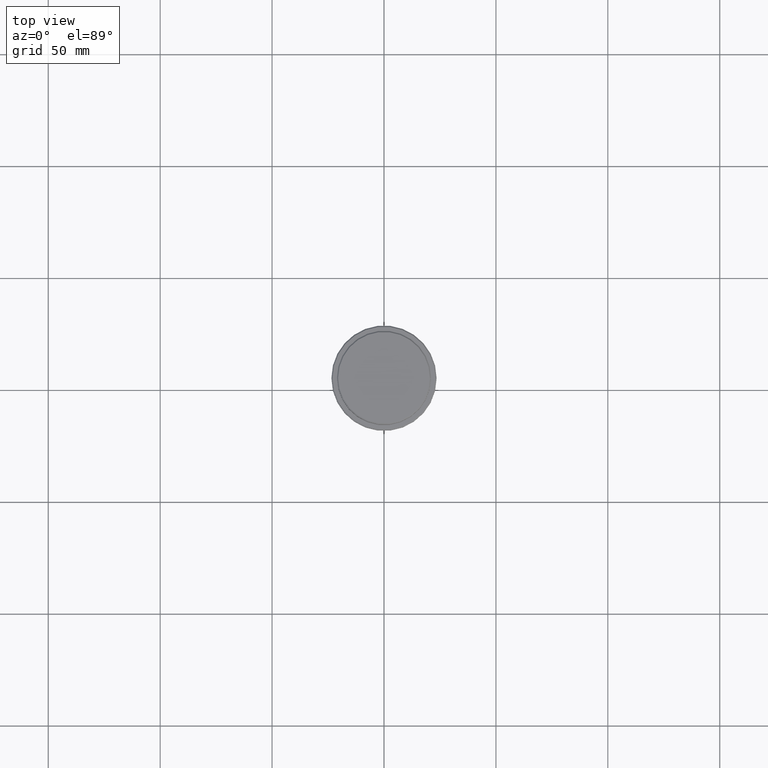
[diagram: clean part render]
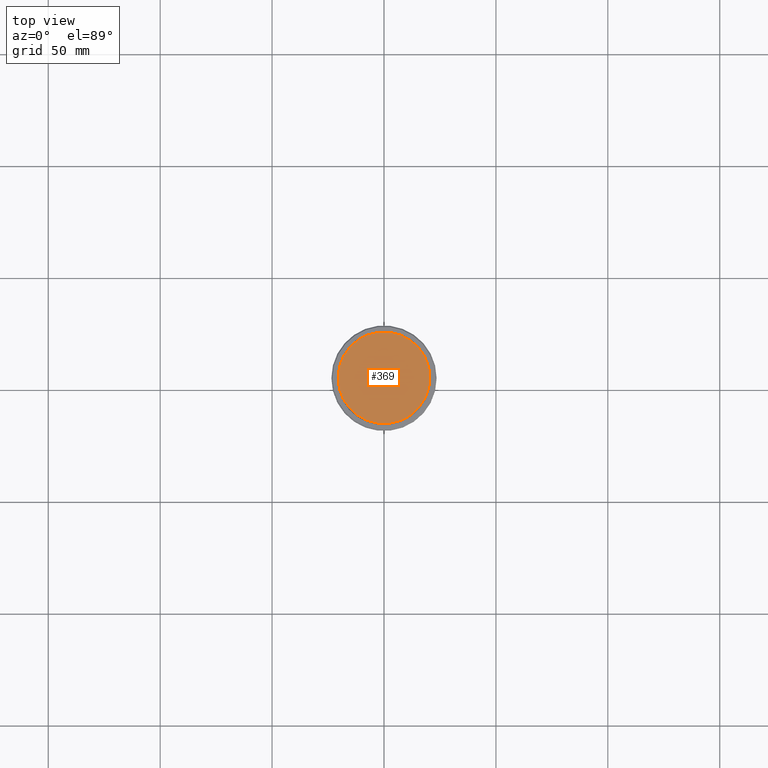
[diagram: same view with one face highlighted and labeled with its STEP entity id]
A machine part, top view. The second image highlights one B-rep face of the part: STEP entity #369.
In plain terms, the highlighted planar face has unit normal (0, -0, 1).
Its self-contained STEP definition (entity closure, byte-faithful):
#76 = CIRCLE ( 'NONE', #290, 20.50000000000004619 ) ;
#79 = EDGE_LOOP ( 'NONE', ( #1400, #332 ) ) ;
#133 = CARTESIAN_POINT ( 'NONE',  ( 0.000000000000000000, 0.000000000000000000, 0.000000000000000000 ) ) ;
#137 = CARTESIAN_POINT ( 'NONE',  ( 20.50000000000004619, 2.541142108230760635E-15, 0.000000000000000000 ) ) ;
#225 = PLANE ( 'NONE',  #1379 ) ;
#290 = AXIS2_PLACEMENT_3D ( 'NONE', #479, #900, #1212 ) ;
#332 = ORIENTED_EDGE ( 'NONE', *, *, #427, .T. ) ;
#365 = DIRECTION ( 'NONE',  ( 1.000000000000000000, 0.000000000000000000, 0.000000000000000000 ) ) ;
#369 = ADVANCED_FACE ( 'NONE', ( #552 ), #225, .T. ) ;
#427 = EDGE_CURVE ( 'NONE', #460, #889, #738, .T. ) ;
#460 = VERTEX_POINT ( 'NONE', #137 ) ;
#479 = CARTESIAN_POINT ( 'NONE',  ( 0.000000000000000000, 0.000000000000000000, 0.000000000000000000 ) ) ;
#552 = FACE_OUTER_BOUND ( 'NONE', #79, .T. ) ;
#578 = DIRECTION ( 'NONE',  ( -0.000000000000000000, -0.000000000000000000, 1.000000000000000000 ) ) ;
#580 = CARTESIAN_POINT ( 'NONE',  ( -20.50000000000004619, 0.000000000000000000, 0.000000000000000000 ) ) ;
#738 = CIRCLE ( 'NONE', #915, 20.50000000000004619 ) ;
#889 = VERTEX_POINT ( 'NONE', #580 ) ;
#900 = DIRECTION ( 'NONE',  ( -0.000000000000000000, -0.000000000000000000, 1.000000000000000000 ) ) ;
#915 = AXIS2_PLACEMENT_3D ( 'NONE', #133, #578, #365 ) ;
#974 = DIRECTION ( 'NONE',  ( 0.000000000000000000, -0.000000000000000000, 1.000000000000000000 ) ) ;
#1190 = CARTESIAN_POINT ( 'NONE',  ( 0.000000000000000000, 0.000000000000000000, 0.000000000000000000 ) ) ;
#1212 = DIRECTION ( 'NONE',  ( 1.000000000000000000, 0.000000000000000000, 0.000000000000000000 ) ) ;
#1379 = AXIS2_PLACEMENT_3D ( 'NONE', #1190, #974, #1413 ) ;
#1395 = EDGE_CURVE ( 'NONE', #889, #460, #76, .T. ) ;
#1400 = ORIENTED_EDGE ( 'NONE', *, *, #1395, .T. ) ;
#1413 = DIRECTION ( 'NONE',  ( 1.000000000000000000, 0.000000000000000000, 0.000000000000000000 ) ) ;